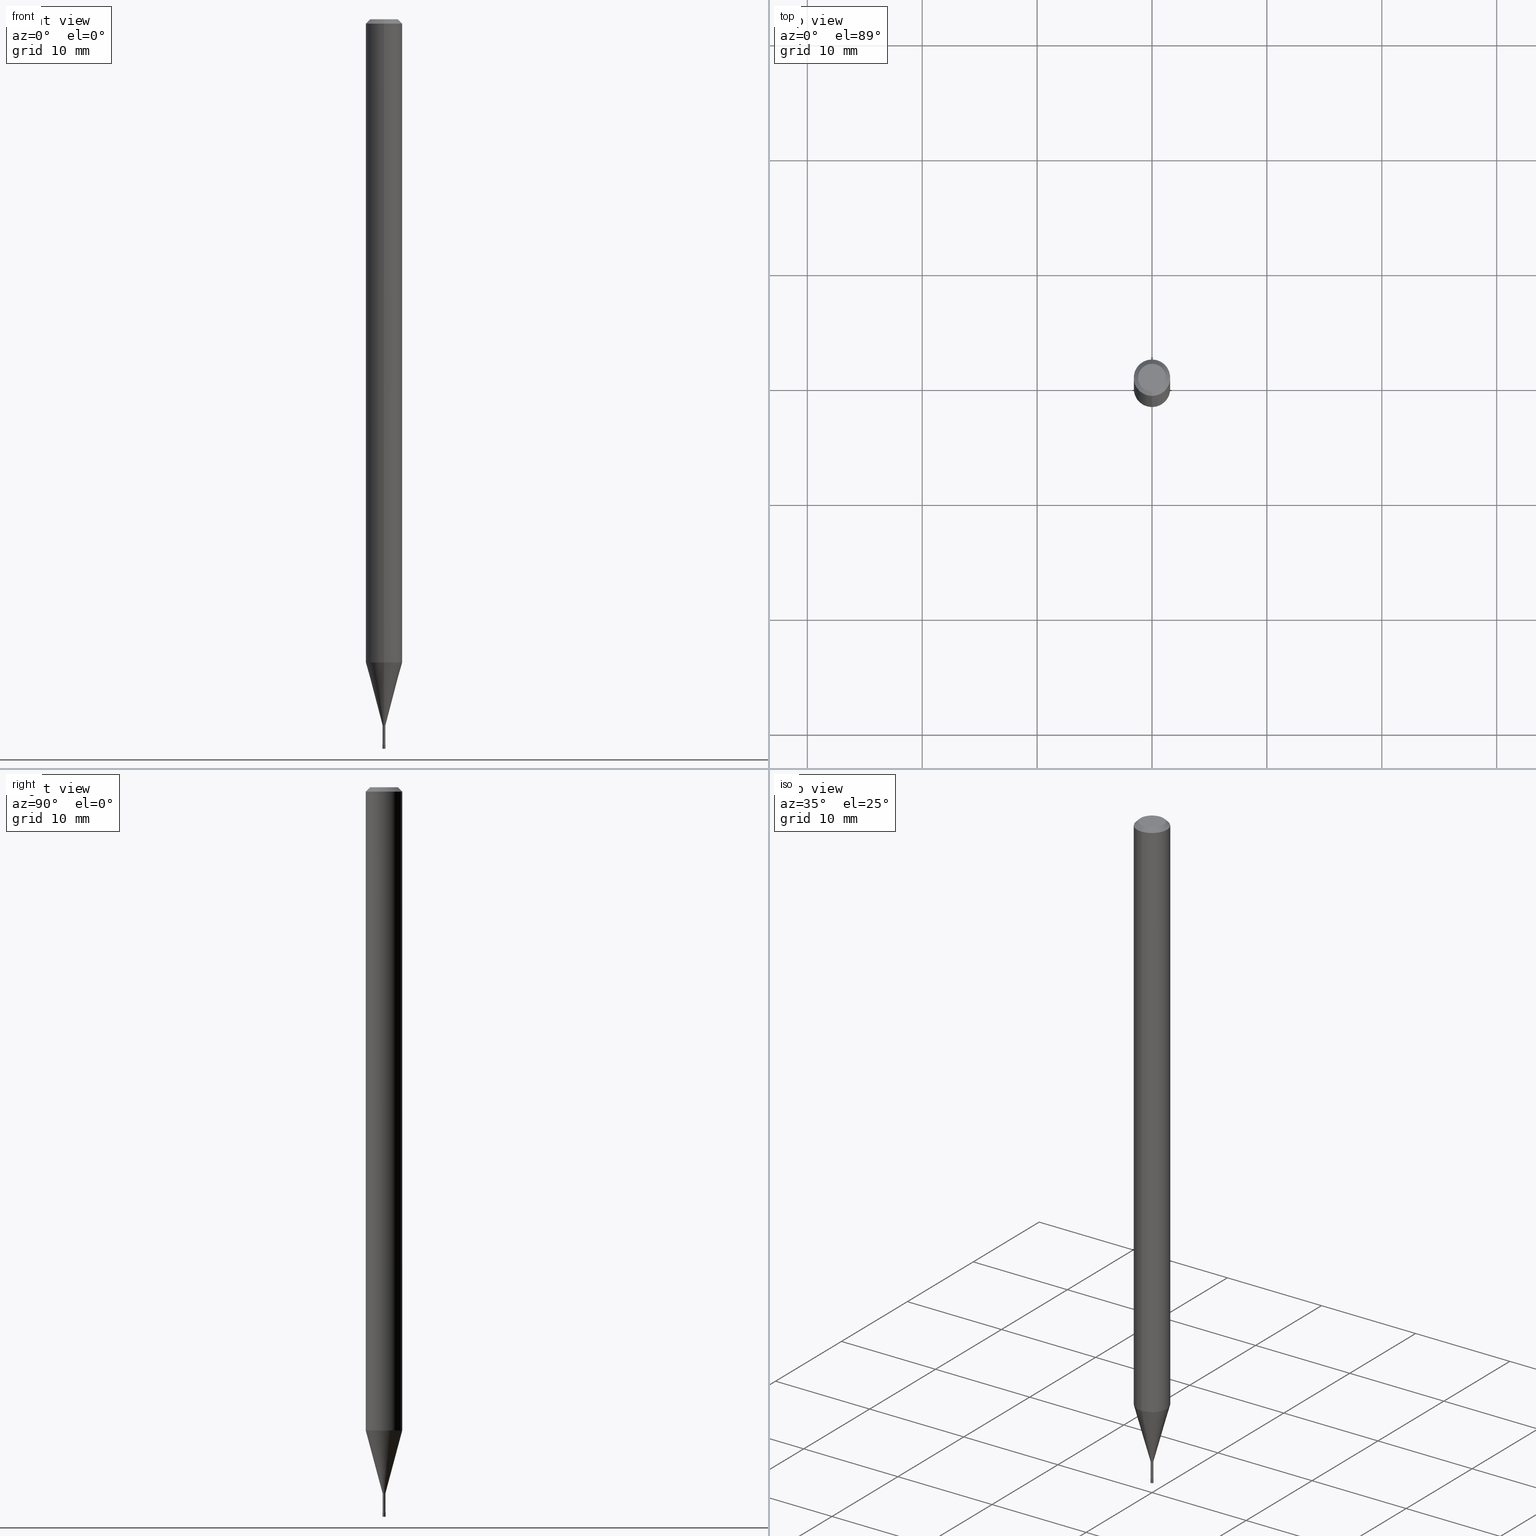
[diagram: canonical four-view strip — front | top / right | iso, engineering-drawing reading convention]
A machine part, canonical four-view strip (front | top / right | iso — engineering-drawing reading convention). The complete STEP part file that produces these views, byte-faithful:
ISO-10303-21;
HEADER;
FILE_DESCRIPTION (( 'STEP AP203' ),
    '1' );
FILE_NAME ('09601.STEP',
    '2024-03-08T23:51:11',
    ( '' ),
    ( '' ),
    'SwSTEP 2.0',
    'SolidWorks 2023',
    '' );
FILE_SCHEMA (( 'CONFIG_CONTROL_DESIGN' ));
ENDSEC;

DATA;
#1 = ORIENTED_EDGE ( 'NONE', *, *, #72, .F. ) ;
#2 = CARTESIAN_POINT ( 'NONE',  ( -3.281992458506486833E-17, -0.004700000000008682476, -2.482015037688680259 ) ) ;
#3 = ORIENTED_EDGE ( 'NONE', *, *, #180, .F. ) ;
#4 = DATE_AND_TIME ( #359, #510 ) ;
#5 = ORIENTED_EDGE ( 'NONE', *, *, #226, .T. ) ;
#6 = EDGE_CURVE ( 'NONE', #339, #478, #248, .T. ) ;
#7 = EDGE_CURVE ( 'NONE', #84, #10, #74, .T. ) ;
#8 = PERSON_AND_ORGANIZATION_ROLE ( 'classification_officer' ) ;
#9 = CARTESIAN_POINT ( 'NONE',  ( -1.375643647503589158E-16, -0.01970000000000868973, -2.482015037688680259 ) ) ;
#10 = VERTEX_POINT ( 'NONE', #497 ) ;
#11 = CC_DESIGN_DATE_AND_TIME_ASSIGNMENT ( #365, #328, ( #316 ) ) ;
#12 = DIRECTION ( 'NONE',  ( -1.000000000000000000, 6.982962677686265922E-15, -4.883557194083112340E-29 ) ) ;
#13 = DIRECTION ( 'NONE',  ( -6.982962677686265922E-15, -1.000000000000000000, 0.000000000000000000 ) ) ;
#14 = AXIS2_PLACEMENT_3D ( 'NONE', #168, #450, #370 ) ;
#15 = CARTESIAN_POINT ( 'NONE',  ( 0.000000000000000000, 0.000000000000000000, 0.000000000000000000 ) ) ;
#16 = CARTESIAN_POINT ( 'NONE',  ( 5.388009754391018819E-29, -7.699817961402049709E-15, -2.204287463322519347 ) ) ;
#17 = DATE_AND_TIME ( #369, #243 ) ;
#18 = FACE_OUTER_BOUND ( 'NONE', #319, .T. ) ;
#19 = DIRECTION ( 'NONE',  ( 7.105427357601000281E-15, 1.000000000000000000, 0.000000000000000000 ) ) ;
#20 = AXIS2_PLACEMENT_3D ( 'NONE', #108, #64, #374 ) ;
#21 = LOCAL_TIME ( 18, 51, 11.00000000000000000, #200 ) ;
#22 = ORIENTED_EDGE ( 'NONE', *, *, #277, .T. ) ;
#23 = ADVANCED_FACE ( 'NONE', ( #135 ), #27, .F. ) ;
#24 = CYLINDRICAL_SURFACE ( 'NONE', #262, 0.004999999999999997502 ) ;
#25 = FACE_OUTER_BOUND ( 'NONE', #233, .T. ) ;
#26 = DIRECTION ( 'NONE',  ( -6.982962677686266711E-15, -1.000000000000000000, 0.000000000000000000 ) ) ;
#27 = PLANE ( 'NONE',  #150 ) ;
#28 = VECTOR ( 'NONE', #67, 39.37007874015748143 ) ;
#29 = CARTESIAN_POINT ( 'NONE',  ( 6.074164310438962886E-29, -8.680377651489870003E-15, -2.484999999999999876 ) ) ;
#30 = CIRCLE ( 'NONE', #271, 0.06250000000000000000 ) ;
#31 = CIRCLE ( 'NONE', #394, 0.004999999999999997502 ) ;
#32 = COORDINATED_UNIVERSAL_TIME_OFFSET ( 5, 0, .BEHIND. ) ;
#33 = ORIENTED_EDGE ( 'NONE', *, *, #519, .T. ) ;
#34 = CARTESIAN_POINT ( 'NONE',  ( 3.666497571693545913E-31, -5.239664578364117759E-17, -0.01500000000000003067 ) ) ;
#35 = EDGE_LOOP ( 'NONE', ( #78, #442, #182, #82 ) ) ;
#36 = CIRCLE ( 'NONE', #334, 0.004999999999999997502 ) ;
#37 = EDGE_CURVE ( 'NONE', #258, #242, #480, .T. ) ;
#38 = CARTESIAN_POINT ( 'NONE',  ( -4.287811248607203282E-16, -0.06250000000000005551, -0.01499999999999981209 ) ) ;
#39 = ORIENTED_EDGE ( 'NONE', *, *, #79, .T. ) ;
#40 = EDGE_LOOP ( 'NONE', ( #485, #281, #310, #466 ) ) ;
#41 = SHAPE_DEFINITION_REPRESENTATION ( #279, #489 ) ;
#42 = ADVANCED_FACE ( 'NONE', ( #414 ), #507, .F. ) ;
#43 = DIRECTION ( 'NONE',  ( -2.444331714462359119E-29, 3.493109718909404263E-15, 1.000000000000000000 ) ) ;
#44 = ORIENTED_EDGE ( 'NONE', *, *, #519, .F. ) ;
#45 = CLOSED_SHELL ( 'NONE', ( #245, #101, #218, #416 ) ) ;
#46 = CIRCLE ( 'NONE', #296, 0.06250000000000000000 ) ;
#47 = TOROIDAL_SURFACE ( 'NONE', #415, 0.01970000000000001958, 0.01500000000000000638 ) ;
#48 = CARTESIAN_POINT ( 'NONE',  ( -4.364351673553377310E-16, -0.06250000000000770217, -2.204287463322519347 ) ) ;
#49 = ORIENTED_EDGE ( 'NONE', *, *, #267, .F. ) ;
#50 = DIRECTION ( 'NONE',  ( -2.444331714462359119E-29, 3.493109718909404657E-15, 1.000000000000000000 ) ) ;
#51 = CARTESIAN_POINT ( 'NONE',  ( 3.339550858078542769E-17, 0.004699999999991543408, -2.421974787463811118 ) ) ;
#52 = DIRECTION ( 'NONE',  ( -2.444331714462359119E-29, 3.493109718909404657E-15, 1.000000000000000000 ) ) ;
#53 = VERTEX_POINT ( 'NONE', #212 ) ;
#54 = EDGE_CURVE ( 'NONE', #478, #387, #471, .T. ) ;
#55 = AXIS2_PLACEMENT_3D ( 'NONE', #408, #169, #176 ) ;
#56 = CIRCLE ( 'NONE', #481, 0.004700000000000012328 ) ;
#57 = PERSON_AND_ORGANIZATION ( #155, #215 ) ;
#58 = PRODUCT_DEFINITION_FORMATION_WITH_SPECIFIED_SOURCE ( 'ANY', '', #440, .NOT_KNOWN. ) ;
#59 = ORIENTED_EDGE ( 'NONE', *, *, #502, .F. ) ;
#60 = DIRECTION ( 'NONE',  ( -2.444331714462359119E-29, 3.493109718909404263E-15, 1.000000000000000000 ) ) ;
#61 = CARTESIAN_POINT ( 'NONE',  ( 5.388009754391018819E-29, -7.699817961402049709E-15, -2.204287463322519347 ) ) ;
#62 = DIRECTION ( 'NONE',  ( 1.000000000000000000, -6.982962677686336130E-15, 0.000000000000000000 ) ) ;
#63 = ADVANCED_FACE ( 'NONE', ( #171 ), #85, .T. ) ;
#64 = DIRECTION ( 'NONE',  ( -2.444331714462359119E-29, 3.493109718909404657E-15, 1.000000000000000000 ) ) ;
#65 = AXIS2_PLACEMENT_3D ( 'NONE', #29, #379, #26 ) ;
#66 = DIRECTION ( 'NONE',  ( -2.444331714462359119E-29, 3.493109718909404263E-15, 1.000000000000000000 ) ) ;
#67 = DIRECTION ( 'NONE',  ( 4.937700262164548042E-15, 0.7071067811865451302, -0.7071067811865499042 ) ) ;
#68 = ADVANCED_FACE ( 'NONE', ( #94 ), #494, .F. ) ;
#69 = CLOSED_SHELL ( 'NONE', ( #42, #234, #291, #239, #430, #486, #477, #381, #63, #23, #68, #512, #110, #468 ) ) ;
#70 = FACE_OUTER_BOUND ( 'NONE', #227, .T. ) ;
#71 = DIRECTION ( 'NONE',  ( 1.000000000000000000, -6.982962677686266711E-15, 4.876176775795936914E-29 ) ) ;
#72 = EDGE_CURVE ( 'NONE', #10, #345, #246, .T. ) ;
#73 = ORIENTED_EDGE ( 'NONE', *, *, #7, .T. ) ;
#74 = CIRCLE ( 'NONE', #434, 0.04749999999999999362 ) ;
#75 = VERTEX_POINT ( 'NONE', #202 ) ;
#76 = AXIS2_PLACEMENT_3D ( 'NONE', #192, #230, #436 ) ;
#77 = CC_DESIGN_PERSON_AND_ORGANIZATION_ASSIGNMENT ( #57, #406, ( #58 ) ) ;
#78 = ORIENTED_EDGE ( 'NONE', *, *, #277, .F. ) ;
#79 = EDGE_CURVE ( 'NONE', #339, #97, #444, .T. ) ;
#80 = CYLINDRICAL_SURFACE ( 'NONE', #413, 0.004700000000000007991 ) ;
#81 =( NAMED_UNIT ( * ) PLANE_ANGLE_UNIT ( ) SI_UNIT ( $, .RADIAN. ) );
#82 = ORIENTED_EDGE ( 'NONE', *, *, #100, .F. ) ;
#83 = DIRECTION ( 'NONE',  ( -2.444331714462359119E-29, 3.493109718909404657E-15, 1.000000000000000000 ) ) ;
#84 = VERTEX_POINT ( 'NONE', #124 ) ;
#85 = CONICAL_SURFACE ( 'NONE', #313, 0.06250000000000000000, 0.7853981633974483900 ) ;
#86 = AXIS2_PLACEMENT_3D ( 'NONE', #159, #473, #482 ) ;
#87 = DIRECTION ( 'NONE',  ( -2.444331714462359119E-29, 3.493109718909404657E-15, 1.000000000000000000 ) ) ;
#88 = CARTESIAN_POINT ( 'NONE',  ( 3.702718207188339616E-17, 0.005211112605655535655, -2.418092501787273196 ) ) ;
#89 = APPROVAL_DATE_TIME ( #399, #211 ) ;
#90 = CARTESIAN_POINT ( 'NONE',  ( 5.910620190622261292E-29, -8.446662419215079685E-15, -2.418092501787273196 ) ) ;
#91 = DIRECTION ( 'NONE',  ( -2.444331714462359119E-29, 3.493109718909404263E-15, 1.000000000000000000 ) ) ;
#92 = DIRECTION ( 'NONE',  ( 1.000000000000000000, -7.105427357601001070E-15, 4.926335450446441508E-29 ) ) ;
#93 = DIRECTION ( 'NONE',  ( -2.444331714462359119E-29, 3.493109718909404657E-15, 1.000000000000000000 ) ) ;
#94 = FACE_OUTER_BOUND ( 'NONE', #351, .T. ) ;
#95 = AXIS2_PLACEMENT_3D ( 'NONE', #142, #341, #298 ) ;
#96 = AXIS2_PLACEMENT_3D ( 'NONE', #475, #327, #131 ) ;
#97 = VERTEX_POINT ( 'NONE', #371 ) ;
#98 = DIRECTION ( 'NONE',  ( 2.438088387897960049E-29, -3.491481338843145188E-15, -1.000000000000000000 ) ) ;
#99 = CARTESIAN_POINT ( 'NONE',  ( 6.076989983370064174E-29, -8.676331127025216680E-15, -2.484999999999999876 ) ) ;
#100 = EDGE_CURVE ( 'NONE', #166, #75, #125, .T. ) ;
#101 = ADVANCED_FACE ( 'NONE', ( #25 ), #338, .T. ) ;
#102 = CIRCLE ( 'NONE', #126, 0.004700000000000003654 ) ;
#103 = FACE_OUTER_BOUND ( 'NONE', #354, .T. ) ;
#104 = CARTESIAN_POINT ( 'NONE',  ( 5.910620190622261292E-29, -8.446662419215079685E-15, -2.418092501787273196 ) ) ;
#105 = DIRECTION ( 'NONE',  ( -2.444331714462359119E-29, 3.493109718909404657E-15, 1.000000000000000000 ) ) ;
#106 = PERSON_AND_ORGANIZATION_ROLE ( 'creator' ) ;
#107 = AXIS2_PLACEMENT_3D ( 'NONE', #441, #87, #330 ) ;
#108 = CARTESIAN_POINT ( 'NONE',  ( 6.066709664809331474E-29, -8.670177699308193072E-15, -2.482015037688680259 ) ) ;
#109 = CC_DESIGN_APPROVAL ( #211, ( #316 ) ) ;
#110 = ADVANCED_FACE ( 'NONE', ( #463 ), #256, .T. ) ;
#111 = DIRECTION ( 'NONE',  ( -4.851104656540964275E-15, -0.7071067811865500152, -0.7071067811865450192 ) ) ;
#112 = MECHANICAL_CONTEXT ( 'NONE', #275, 'mechanical' ) ;
#113 = EDGE_CURVE ( 'NONE', #242, #229, #401, .T. ) ;
#114 = VERTEX_POINT ( 'NONE', #51 ) ;
#115 = ORIENTED_EDGE ( 'NONE', *, *, #37, .F. ) ;
#116 = DIRECTION ( 'NONE',  ( 1.000000000000000000, 0.000000000000000000, 0.000000000000000000 ) ) ;
#117 = ORIENTED_EDGE ( 'NONE', *, *, #267, .T. ) ;
#118 = CALENDAR_DATE ( 2024, 8, 3 ) ;
#119 = CARTESIAN_POINT ( 'NONE',  ( 0.000000000000000000, 0.000000000000000000, 0.000000000000000000 ) ) ;
#120 = APPROVAL_ROLE ( '' ) ;
#121 = ORIENTED_EDGE ( 'NONE', *, *, #346, .F. ) ;
#122 = VERTEX_POINT ( 'NONE', #364 ) ;
#123 = DIRECTION ( 'NONE',  ( -1.000000000000000000, 6.982962677686265922E-15, -4.876176775795935793E-29 ) ) ;
#124 = CARTESIAN_POINT ( 'NONE',  ( -3.773273898774340269E-16, -0.04749999999999999362, 1.370861487734750493E-16 ) ) ;
#125 = CIRCLE ( 'NONE', #183, 0.004999999999999997502 ) ;
#126 = AXIS2_PLACEMENT_3D ( 'NONE', #465, #105, #221 ) ;
#127 = EDGE_CURVE ( 'NONE', #97, #387, #326, .T. ) ;
#128 = CARTESIAN_POINT ( 'NONE',  ( 5.919883105768865259E-29, -8.460548286068590295E-15, -2.421974787463811118 ) ) ;
#129 = DIRECTION ( 'NONE',  ( -2.444331714462359119E-29, 3.493109718909404657E-15, 1.000000000000000000 ) ) ;
#130 = DIRECTION ( 'NONE',  ( -2.444331714462359119E-29, 3.493109718909404657E-15, 1.000000000000000000 ) ) ;
#131 = DIRECTION ( 'NONE',  ( -6.982962677686265922E-15, -1.000000000000000000, 0.000000000000000000 ) ) ;
#132 = DATE_TIME_ROLE ( 'creation_date' ) ;
#133 = UNCERTAINTY_MEASURE_WITH_UNIT (LENGTH_MEASURE( 1.000000000000000082E-05 ), #299, 'distance_accuracy_value', 'NONE');
#134 = CARTESIAN_POINT ( 'NONE',  ( 5.920109784626025516E-29, -8.460223669043378527E-15, -2.421974787463811118 ) ) ;
#135 = FACE_OUTER_BOUND ( 'NONE', #261, .T. ) ;
#136 = EDGE_CURVE ( 'NONE', #97, #339, #429, .T. ) ;
#137 = AXIS2_PLACEMENT_3D ( 'NONE', #285, #448, #244 ) ;
#138 = CC_DESIGN_APPROVAL ( #140, ( #438 ) ) ;
#139 = PERSON_AND_ORGANIZATION ( #155, #215 ) ;
#140 = APPROVAL ( #483, 'UNSPECIFIED' ) ;
#141 = VECTOR ( 'NONE', #411, 39.37007874015748854 ) ;
#142 = CARTESIAN_POINT ( 'NONE',  ( 6.076989983370064174E-29, -8.676331127025216680E-15, -2.484999999999999876 ) ) ;
#143 = TOROIDAL_SURFACE ( 'NONE', #20, 0.01970000000000001958, 0.01500000000000000638 ) ;
#144 = EDGE_CURVE ( 'NONE', #97, #433, #196, .T. ) ;
#145 = EDGE_LOOP ( 'NONE', ( #426, #474, #509, #357 ) ) ;
#146 = ORIENTED_EDGE ( 'NONE', *, *, #6, .F. ) ;
#147 = DIRECTION ( 'NONE',  ( 1.000000000000000000, -6.982962677686336130E-15, 0.000000000000000000 ) ) ;
#148 = EDGE_CURVE ( 'NONE', #258, #163, #347, .T. ) ;
#149 = DIRECTION ( 'NONE',  ( -1.807323732225328167E-15, -0.2588190451025179084, 0.9659258262890690894 ) ) ;
#150 = AXIS2_PLACEMENT_3D ( 'NONE', #204, #496, #288 ) ;
#151 = DIRECTION ( 'NONE',  ( -2.444331714462359119E-29, 3.493109718909404657E-15, 1.000000000000000000 ) ) ;
#152 = AXIS2_PLACEMENT_3D ( 'NONE', #119, #189, #71 ) ;
#153 = ORIENTED_EDGE ( 'NONE', *, *, #113, .F. ) ;
#154 = DIRECTION ( 'NONE',  ( -2.444331714462359119E-29, 3.493109718909404657E-15, 1.000000000000000000 ) ) ;
#155 = PERSON ( 'UNSPECIFIED', 'UNSPECIFIED', 'UNSPECIFIED', ('UNSPECIFIED'), ('UNSPECIFIED'), ('UNSPECIFIED') ) ;
#156 = ORIENTED_EDGE ( 'NONE', *, *, #37, .T. ) ;
#157 = APPLICATION_PROTOCOL_DEFINITION ( 'international standard', 'config_control_design', 1994, #275 ) ;
#158 = ORIENTED_EDGE ( 'NONE', *, *, #113, .T. ) ;
#159 = CARTESIAN_POINT ( 'NONE',  ( 6.113672015462842613E-29, -8.728703347107864943E-15, -2.500000000000000000 ) ) ;
#160 = VERTEX_POINT ( 'NONE', #395 ) ;
#161 = CIRCLE ( 'NONE', #472, 0.01500000000000000638 ) ;
#162 = APPROVAL_DATE_TIME ( #4, #140 ) ;
#163 = VERTEX_POINT ( 'NONE', #2 ) ;
#164 = PERSON_AND_ORGANIZATION ( #155, #215 ) ;
#165 = CARTESIAN_POINT ( 'NONE',  ( 1.399769189447989417E-16, 0.01969999999999154719, -2.421974787463811118 ) ) ;
#166 = VERTEX_POINT ( 'NONE', #311 ) ;
#167 = DIMENSIONAL_EXPONENTS ( 1.000000000000000000, 0.000000000000000000, 0.000000000000000000, 0.000000000000000000, 0.000000000000000000, 0.000000000000000000, 0.000000000000000000 ) ;
#168 = CARTESIAN_POINT ( 'NONE',  ( 0.000000000000000000, 0.000000000000000000, 0.000000000000000000 ) ) ;
#169 = DIRECTION ( 'NONE',  ( -2.444331714462359119E-29, 3.493109718909404657E-15, 1.000000000000000000 ) ) ;
#170 = CARTESIAN_POINT ( 'NONE',  ( 7.048612517077012088E-46, -1.007292780376324929E-31, -2.883656287472169979E-17 ) ) ;
#171 = FACE_OUTER_BOUND ( 'NONE', #405, .T. ) ;
#172 = CIRCLE ( 'NONE', #86, 0.004999999999999997502 ) ;
#173 = CARTESIAN_POINT ( 'NONE',  ( 0.000000000000000000, 0.000000000000000000, 0.000000000000000000 ) ) ;
#174 = ORIENTED_EDGE ( 'NONE', *, *, #307, .T. ) ;
#175 = EDGE_CURVE ( 'NONE', #122, #160, #172, .T. ) ;
#176 = DIRECTION ( 'NONE',  ( -6.982962677686265133E-15, -1.000000000000000000, 3.493109718909404657E-15 ) ) ;
#177 = DIRECTION ( 'NONE',  ( -6.982962677686265922E-15, -1.000000000000000000, 3.493109718909405052E-15 ) ) ;
#178 = VECTOR ( 'NONE', #344, 39.37007874015748143 ) ;
#179 = ORIENTED_EDGE ( 'NONE', *, *, #290, .F. ) ;
#180 = EDGE_CURVE ( 'NONE', #84, #53, #390, .T. ) ;
#181 = CARTESIAN_POINT ( 'NONE',  ( 0.004999999999999997502, -3.491481338843131630E-17, 2.438088387897967108E-31 ) ) ;
#182 = ORIENTED_EDGE ( 'NONE', *, *, #309, .T. ) ;
#183 = AXIS2_PLACEMENT_3D ( 'NONE', #99, #252, #62 ) ;
#184 = DATE_AND_TIME ( #263, #255 ) ;
#185 = DIRECTION ( 'NONE',  ( -6.982962677686265922E-15, -1.000000000000000000, 3.483106191921935554E-15 ) ) ;
#186 = LOCAL_TIME ( 18, 51, 11.00000000000000000, #273 ) ;
#187 = ORIENTED_EDGE ( 'NONE', *, *, #226, .F. ) ;
#188 = PERSON_AND_ORGANIZATION_ROLE ( 'design_supplier' ) ;
#189 = DIRECTION ( 'NONE',  ( -2.445468806185136597E-29, 3.491481338843145583E-15, 1.000000000000000000 ) ) ;
#190 = CARTESIAN_POINT ( 'NONE',  ( -4.364351673553916201E-16, -0.06250000000000000000, 2.183193574318377911E-16 ) ) ;
#191 = ORIENTED_EDGE ( 'NONE', *, *, #6, .T. ) ;
#192 = CARTESIAN_POINT ( 'NONE',  ( -1.375643647503602717E-16, -0.01970000000000846768, -2.421974787463811118 ) ) ;
#193 = APPLICATION_PROTOCOL_DEFINITION ( 'international standard', 'config_control_design', 1994, #324 ) ;
#194 = EDGE_LOOP ( 'NONE', ( #467, #389, #187, #360 ) ) ;
#195 = DIRECTION ( 'NONE',  ( -2.444331714462359119E-29, 3.493109718909404657E-15, 1.000000000000000000 ) ) ;
#196 = CIRCLE ( 'NONE', #76, 0.01500000000000002720 ) ;
#197 = ORIENTED_EDGE ( 'NONE', *, *, #346, .T. ) ;
#198 = DIRECTION ( 'NONE',  ( 1.000000000000000000, -6.982962677686336130E-15, 0.000000000000000000 ) ) ;
#199 = ORIENTED_EDGE ( 'NONE', *, *, #72, .T. ) ;
#200 = COORDINATED_UNIVERSAL_TIME_OFFSET ( 5, 0, .BEHIND. ) ;
#201 = CARTESIAN_POINT ( 'NONE',  ( 2.405581959610001048E-16, 0.005211112605655535655, -2.418092501787273196 ) ) ;
#202 = CARTESIAN_POINT ( 'NONE',  ( 0.004999999999999997502, -8.711245940413648329E-15, -2.484999999999999876 ) ) ;
#203 = DIRECTION ( 'NONE',  ( 7.105427357601000281E-15, 1.000000000000000000, 0.000000000000000000 ) ) ;
#204 = CARTESIAN_POINT ( 'NONE',  ( 3.316907271900976096E-16, 0.04749999999999999362, -1.803409930855575528E-16 ) ) ;
#205 = AXIS2_PLACEMENT_3D ( 'NONE', #418, #92, #19 ) ;
#206 = VECTOR ( 'NONE', #500, 39.37007874015748143 ) ;
#207 = CYLINDRICAL_SURFACE ( 'NONE', #14, 0.06250000000000000000 ) ;
#208 = CARTESIAN_POINT ( 'NONE',  ( 4.364351673553919652E-16, 0.06249999999999995143, -0.01500000000000024751 ) ) ;
#209 = ORIENTED_EDGE ( 'NONE', *, *, #180, .T. ) ;
#210 = DIRECTION ( 'NONE',  ( -2.444331714462359119E-29, 3.493109718909404657E-15, 1.000000000000000000 ) ) ;
#211 = APPROVAL ( #443, 'UNSPECIFIED' ) ;
#212 = CARTESIAN_POINT ( 'NONE',  ( -4.364351673553912750E-16, -0.06250000000000005551, -0.01499999999999981209 ) ) ;
#213 = CARTESIAN_POINT ( 'NONE',  ( 3.446132268442561466E-17, 0.004699999999991343047, -2.482015037688680259 ) ) ;
#214 = AXIS2_PLACEMENT_3D ( 'NONE', #34, #350, #185 ) ;
#215 = ORGANIZATION ( 'UNSPECIFIED', 'UNSPECIFIED', '' ) ;
#216 =( LENGTH_UNIT ( ) NAMED_UNIT ( * ) SI_UNIT ( $, .METRE. ) );
#217 = DIRECTION ( 'NONE',  ( 6.982962677686265922E-15, 1.000000000000000000, -3.483106191921935554E-15 ) ) ;
#218 = ADVANCED_FACE ( 'NONE', ( #264 ), #431, .T. ) ;
#219 = CC_DESIGN_PERSON_AND_ORGANIZATION_ASSIGNMENT ( #361, #8, ( #316 ) ) ;
#220 = DIRECTION ( 'NONE',  ( -2.445468806185136597E-29, 3.491481338843145583E-15, 1.000000000000000000 ) ) ;
#221 = DIRECTION ( 'NONE',  ( -6.982962677686265922E-15, -1.000000000000000000, 0.000000000000000000 ) ) ;
#222 = ORIENTED_EDGE ( 'NONE', *, *, #318, .T. ) ;
#223 = CARTESIAN_POINT ( 'NONE',  ( 0.000000000000000000, 0.000000000000000000, 0.000000000000000000 ) ) ;
#224 = CARTESIAN_POINT ( 'NONE',  ( 6.066709664809331474E-29, -8.670177699308193072E-15, -2.482015037688680259 ) ) ;
#225 = VECTOR ( 'NONE', #43, 39.37007874015748143 ) ;
#226 = EDGE_CURVE ( 'NONE', #53, #345, #385, .T. ) ;
#227 = EDGE_LOOP ( 'NONE', ( #476, #156, #158, #396 ) ) ;
#228 = DIRECTION ( 'NONE',  ( -6.982962677686265922E-15, -1.000000000000000000, 0.000000000000000000 ) ) ;
#229 = VERTEX_POINT ( 'NONE', #517 ) ;
#230 = DIRECTION ( 'NONE',  ( -1.000000000000000000, 6.982962677686265922E-15, -4.883557194083112340E-29 ) ) ;
#231 = DIRECTION ( 'NONE',  ( 0.000000000000000000, 0.000000000000000000, 1.000000000000000000 ) ) ;
#232 = VECTOR ( 'NONE', #66, 39.37007874015748143 ) ;
#233 = EDGE_LOOP ( 'NONE', ( #33, #437 ) ) ;
#234 = ADVANCED_FACE ( 'NONE', ( #352 ), #80, .T. ) ;
#235 = PERSON_AND_ORGANIZATION ( #155, #215 ) ;
#236 = ORIENTED_EDGE ( 'NONE', *, *, #127, .F. ) ;
#237 = COORDINATED_UNIVERSAL_TIME_OFFSET ( 5, 0, .BEHIND. ) ;
#238 = ORIENTED_EDGE ( 'NONE', *, *, #461, .T. ) ;
#239 = ADVANCED_FACE ( 'NONE', ( #18 ), #284, .T. ) ;
#240 = CARTESIAN_POINT ( 'NONE',  ( 4.440892098501169490E-16, 0.06249999999999995837, -0.01500000000000024751 ) ) ;
#241 = VECTOR ( 'NONE', #91, 39.37007874015748143 ) ;
#242 = VERTEX_POINT ( 'NONE', #377 ) ;
#243 = LOCAL_TIME ( 18, 51, 11.00000000000000000, #501 ) ;
#244 = DIRECTION ( 'NONE',  ( -6.982962677686266711E-15, -1.000000000000000000, 0.000000000000000000 ) ) ;
#245 = ADVANCED_FACE ( 'NONE', ( #103 ), #24, .T. ) ;
#246 = LINE ( 'NONE', #208, #28 ) ;
#247 = CARTESIAN_POINT ( 'NONE',  ( 7.048612517077012088E-46, -1.007292780376324929E-31, -2.883656287472169979E-17 ) ) ;
#248 = LINE ( 'NONE', #88, #141 ) ;
#249 = AXIS2_PLACEMENT_3D ( 'NONE', #425, #60, #506 ) ;
#250 = AXIS2_PLACEMENT_3D ( 'NONE', #128, #499, #280 ) ;
#251 = FACE_OUTER_BOUND ( 'NONE', #194, .T. ) ;
#252 = DIRECTION ( 'NONE',  ( -2.445468806185136597E-29, 3.491481338843145583E-15, 1.000000000000000000 ) ) ;
#253 = EDGE_CURVE ( 'NONE', #258, #114, #300, .T. ) ;
#254 = CIRCLE ( 'NONE', #393, 0.01500000000000002720 ) ;
#255 = LOCAL_TIME ( 18, 51, 11.00000000000000000, #32 ) ;
#256 = CYLINDRICAL_SURFACE ( 'NONE', #358, 0.004700000000000007991 ) ;
#257 = LINE ( 'NONE', #427, #206 ) ;
#258 = VERTEX_POINT ( 'NONE', #213 ) ;
#259 = SECURITY_CLASSIFICATION_LEVEL ( 'unclassified' ) ;
#260 = LINE ( 'NONE', #336, #445 ) ;
#261 = EDGE_LOOP ( 'NONE', ( #238, #73 ) ) ;
#262 = AXIS2_PLACEMENT_3D ( 'NONE', #173, #337, #423 ) ;
#263 = CALENDAR_DATE ( 2024, 8, 3 ) ;
#264 = FACE_OUTER_BOUND ( 'NONE', #35, .T. ) ;
#265 = ORIENTED_EDGE ( 'NONE', *, *, #502, .T. ) ;
#266 = CARTESIAN_POINT ( 'NONE',  ( 0.000000000000000000, 0.000000000000000000, 0.000000000000000000 ) ) ;
#267 = EDGE_CURVE ( 'NONE', #163, #433, #260, .T. ) ;
#268 = ORIENTED_EDGE ( 'NONE', *, *, #446, .F. ) ;
#269 = APPROVAL ( #386, 'UNSPECIFIED' ) ;
#270 = CIRCLE ( 'NONE', #367, 0.004700000000000003654 ) ;
#271 = AXIS2_PLACEMENT_3D ( 'NONE', #516, #154, #306 ) ;
#272 = ORIENTED_EDGE ( 'NONE', *, *, #54, .T. ) ;
#273 = COORDINATED_UNIVERSAL_TIME_OFFSET ( 5, 0, .BEHIND. ) ;
#274 = PERSON_AND_ORGANIZATION ( #155, #215 ) ;
#275 = APPLICATION_CONTEXT ( 'configuration controlled 3d designs of mechanical parts and assemblies' ) ;
#276 = ORIENTED_EDGE ( 'NONE', *, *, #54, .F. ) ;
#277 = EDGE_CURVE ( 'NONE', #122, #166, #257, .T. ) ;
#278 = EDGE_CURVE ( 'NONE', #433, #114, #102, .T. ) ;
#279 = PRODUCT_DEFINITION_SHAPE ( 'NONE', 'NONE',  #438 ) ;
#280 = DIRECTION ( 'NONE',  ( -6.982962677686265133E-15, -1.000000000000000000, 3.493109718909404657E-15 ) ) ;
#281 = ORIENTED_EDGE ( 'NONE', *, *, #372, .T. ) ;
#282 = APPROVAL_DATE_TIME ( #184, #269 ) ;
#283 = CYLINDRICAL_SURFACE ( 'NONE', #435, 0.06250000000000000000 ) ;
#284 = CONICAL_SURFACE ( 'NONE', #421, 0.06250000000000000000, 0.7853981633974483900 ) ;
#285 = CARTESIAN_POINT ( 'NONE',  ( 6.074164310438962886E-29, -8.680377651489870003E-15, -2.484999999999999876 ) ) ;
#286 = MANIFOLD_SOLID_BREP ( 'Body-Move/Copy2[1]', #45 ) ;
#287 = DIRECTION ( 'NONE',  ( 1.000000000000000000, -7.105427357601001070E-15, 4.926335450446441508E-29 ) ) ;
#288 = DIRECTION ( 'NONE',  ( 6.982962677686265922E-15, 1.000000000000000000, -3.493109718909404263E-15 ) ) ;
#289 = ORIENTED_EDGE ( 'NONE', *, *, #335, .F. ) ;
#290 = EDGE_CURVE ( 'NONE', #229, #242, #384, .T. ) ;
#291 = ADVANCED_FACE ( 'NONE', ( #70 ), #143, .F. ) ;
#292 = FACE_OUTER_BOUND ( 'NONE', #515, .T. ) ;
#293 = DIRECTION ( 'NONE',  ( -6.982962677686265922E-15, -1.000000000000000000, 4.370956789862821150E-15 ) ) ;
#294 = AXIS2_PLACEMENT_3D ( 'NONE', #90, #505, #348 ) ;
#295 =( GEOMETRIC_REPRESENTATION_CONTEXT ( 3 ) GLOBAL_UNCERTAINTY_ASSIGNED_CONTEXT ( ( #133 ) ) GLOBAL_UNIT_ASSIGNED_CONTEXT ( ( #299, #81, #353 ) ) REPRESENTATION_CONTEXT ( 'NONE', 'WORKASPACE' ) );
#296 = AXIS2_PLACEMENT_3D ( 'NONE', #61, #93, #417 ) ;
#297 = AXIS2_PLACEMENT_3D ( 'NONE', #266, #231, #116 ) ;
#298 = DIRECTION ( 'NONE',  ( 1.000000000000000000, -6.982962677686265922E-15, 4.876176775795935793E-29 ) ) ;
#299 =( CONVERSION_BASED_UNIT ( 'INCH', #378 ) LENGTH_UNIT ( ) NAMED_UNIT ( #167 ) );
#300 = LINE ( 'NONE', #503, #232 ) ;
#301 = DIRECTION ( 'NONE',  ( 2.444331714462359119E-29, -3.493109718909404657E-15, -1.000000000000000000 ) ) ;
#302 = EDGE_LOOP ( 'NONE', ( #197, #317, #362, #49 ) ) ;
#303 = AXIS2_PLACEMENT_3D ( 'NONE', #16, #130, #293 ) ;
#304 = VECTOR ( 'NONE', #149, 39.37007874015748143 ) ;
#305 = ORIENTED_EDGE ( 'NONE', *, *, #290, .T. ) ;
#306 = DIRECTION ( 'NONE',  ( -6.982962677686265922E-15, -1.000000000000000000, 3.483106191921935554E-15 ) ) ;
#307 = EDGE_CURVE ( 'NONE', #387, #53, #470, .T. ) ;
#308 = APPROVAL_ROLE ( '' ) ;
#309 = EDGE_CURVE ( 'NONE', #160, #75, #388, .T. ) ;
#310 = ORIENTED_EDGE ( 'NONE', *, *, #335, .T. ) ;
#311 = CARTESIAN_POINT ( 'NONE',  ( -0.004999999999999997502, -8.666990100278535771E-15, -2.484999999999999876 ) ) ;
#312 = ORIENTED_EDGE ( 'NONE', *, *, #461, .F. ) ;
#313 = AXIS2_PLACEMENT_3D ( 'NONE', #454, #373, #457 ) ;
#314 = PERSON_AND_ORGANIZATION ( #155, #215 ) ;
#315 = CONICAL_SURFACE ( 'NONE', #294, 0.005211112605663982024, 0.2617993877991499629 ) ;
#316 = SECURITY_CLASSIFICATION ( '', '', #259 ) ;
#317 = ORIENTED_EDGE ( 'NONE', *, *, #253, .T. ) ;
#318 = EDGE_CURVE ( 'NONE', #160, #122, #36, .T. ) ;
#319 = EDGE_LOOP ( 'NONE', ( #518, #209, #5, #1 ) ) ;
#320 = CC_DESIGN_PERSON_AND_ORGANIZATION_ASSIGNMENT ( #274, #188, ( #58 ) ) ;
#321 = DIRECTION ( 'NONE',  ( -2.445468806185136597E-29, 3.491481338843145583E-15, 1.000000000000000000 ) ) ;
#322 = EDGE_LOOP ( 'NONE', ( #146, #39, #428, #276 ) ) ;
#323 = CALENDAR_DATE ( 2024, 8, 3 ) ;
#324 = APPLICATION_CONTEXT ( 'configuration controlled 3d designs of mechanical parts and assemblies' ) ;
#325 = FACE_OUTER_BOUND ( 'NONE', #145, .T. ) ;
#326 = LINE ( 'NONE', #451, #304 ) ;
#327 = DIRECTION ( 'NONE',  ( -2.444331714462359119E-29, 3.493109718909404657E-15, 1.000000000000000000 ) ) ;
#328 = DATE_TIME_ROLE ( 'classification_date' ) ;
#329 = EDGE_CURVE ( 'NONE', #163, #229, #161, .T. ) ;
#330 = DIRECTION ( 'NONE',  ( -6.982962677686265922E-15, -1.000000000000000000, 0.000000000000000000 ) ) ;
#331 = CARTESIAN_POINT ( 'NONE',  ( -3.281992458506627349E-17, -0.004700000000008463900, -2.421974787463811118 ) ) ;
#332 = DIRECTION ( 'NONE',  ( -6.982962677686266711E-15, -1.000000000000000000, 3.493109718909405052E-15 ) ) ;
#333 = FACE_OUTER_BOUND ( 'NONE', #322, .T. ) ;
#334 = AXIS2_PLACEMENT_3D ( 'NONE', #495, #321, #198 ) ;
#335 = EDGE_CURVE ( 'NONE', #114, #433, #270, .T. ) ;
#336 = CARTESIAN_POINT ( 'NONE',  ( -3.281992458512550585E-17, -0.004700000000000007991, 1.641761567887423080E-17 ) ) ;
#337 = DIRECTION ( 'NONE',  ( -2.445468806185136597E-29, 3.491481338843145583E-15, 1.000000000000000000 ) ) ;
#338 = PLANE ( 'NONE',  #95 ) ;
#339 = VERTEX_POINT ( 'NONE', #201 ) ;
#340 = TOROIDAL_SURFACE ( 'NONE', #250, 0.01970000000000000570, 0.01500000000000002720 ) ;
#341 = DIRECTION ( 'NONE',  ( -2.438088387897960049E-29, 3.491481338843145188E-15, 1.000000000000000000 ) ) ;
#342 = DIRECTION ( 'NONE',  ( -2.444331714462359119E-29, 3.493109718909404263E-15, 1.000000000000000000 ) ) ;
#343 = CARTESIAN_POINT ( 'NONE',  ( 6.076989983370064174E-29, -8.676331127025216680E-15, -2.484999999999999876 ) ) ;
#344 = DIRECTION ( 'NONE',  ( -2.445468806185136877E-29, 3.491481338843145188E-15, 1.000000000000000000 ) ) ;
#345 = VERTEX_POINT ( 'NONE', #240 ) ;
#346 = EDGE_CURVE ( 'NONE', #163, #258, #56, .T. ) ;
#347 = CIRCLE ( 'NONE', #491, 0.004700000000000012328 ) ;
#348 = DIRECTION ( 'NONE',  ( -6.982962677686265922E-15, -1.000000000000000000, 0.000000000000000000 ) ) ;
#349 = APPROVAL_PERSON_ORGANIZATION ( #164, #211, #355 ) ;
#350 = DIRECTION ( 'NONE',  ( -2.444331714462359119E-29, 3.493109718909404657E-15, 1.000000000000000000 ) ) ;
#351 = EDGE_LOOP ( 'NONE', ( #179, #153 ) ) ;
#352 = FACE_OUTER_BOUND ( 'NONE', #302, .T. ) ;
#353 =( NAMED_UNIT ( * ) SI_UNIT ( $, .STERADIAN. ) SOLID_ANGLE_UNIT ( ) );
#354 = EDGE_LOOP ( 'NONE', ( #222, #22, #44, #398 ) ) ;
#355 = APPROVAL_ROLE ( '' ) ;
#356 = CARTESIAN_POINT ( 'NONE',  ( 6.066868072394927886E-29, -8.669950850629620107E-15, -2.482015037688680259 ) ) ;
#357 = ORIENTED_EDGE ( 'NONE', *, *, #278, .T. ) ;
#358 = AXIS2_PLACEMENT_3D ( 'NONE', #223, #383, #177 ) ;
#359 = CALENDAR_DATE ( 2024, 8, 3 ) ;
#360 = ORIENTED_EDGE ( 'NONE', *, *, #307, .F. ) ;
#361 = PERSON_AND_ORGANIZATION ( #155, #215 ) ;
#362 = ORIENTED_EDGE ( 'NONE', *, *, #278, .F. ) ;
#363 = CARTESIAN_POINT ( 'NONE',  ( 6.066868072394927886E-29, -8.669950850629620107E-15, -2.482015037688680259 ) ) ;
#364 = CARTESIAN_POINT ( 'NONE',  ( -0.004999999999999997502, -8.666990100278535771E-15, -2.500000000000000000 ) ) ;
#365 = DATE_AND_TIME ( #118, #21 ) ;
#366 = PLANE ( 'NONE',  #462 ) ;
#367 = AXIS2_PLACEMENT_3D ( 'NONE', #134, #50, #410 ) ;
#368 = DIRECTION ( 'NONE',  ( -2.444331714462359119E-29, 3.493109718909404657E-15, 1.000000000000000000 ) ) ;
#369 = CALENDAR_DATE ( 2024, 8, 3 ) ;
#370 = DIRECTION ( 'NONE',  ( -6.982962677686265922E-15, -1.000000000000000000, 3.493109718909404657E-15 ) ) ;
#371 = CARTESIAN_POINT ( 'NONE',  ( -3.638900483451291198E-17, -0.005211112605672428393, -2.418092501787273196 ) ) ;
#372 = EDGE_CURVE ( 'NONE', #339, #114, #254, .T. ) ;
#373 = DIRECTION ( 'NONE',  ( 2.444331714462359119E-29, -3.493109718909404657E-15, -1.000000000000000000 ) ) ;
#374 = DIRECTION ( 'NONE',  ( -6.982962677686265133E-15, -1.000000000000000000, 3.493109718909404657E-15 ) ) ;
#375 = VECTOR ( 'NONE', #111, 39.37007874015748143 ) ;
#376 = APPROVAL_PERSON_ORGANIZATION ( #139, #269, #308 ) ;
#377 = CARTESIAN_POINT ( 'NONE',  ( 3.552713678806574616E-17, 0.004999999999991322150, -2.484999999999999876 ) ) ;
#378 = LENGTH_MEASURE_WITH_UNIT ( LENGTH_MEASURE( 0.02539999999999999897 ), #216 );
#379 = DIRECTION ( 'NONE',  ( -2.444331714462359119E-29, 3.493109718909404657E-15, 1.000000000000000000 ) ) ;
#380 = EDGE_LOOP ( 'NONE', ( #464, #191, #268, #236 ) ) ;
#381 = ADVANCED_FACE ( 'NONE', ( #447 ), #207, .T. ) ;
#382 = EDGE_LOOP ( 'NONE', ( #391, #272, #174, #59 ) ) ;
#383 = DIRECTION ( 'NONE',  ( -2.444331714462359119E-29, 3.493109718909404657E-15, 1.000000000000000000 ) ) ;
#384 = CIRCLE ( 'NONE', #65, 0.005000000000000001839 ) ;
#385 = CIRCLE ( 'NONE', #214, 0.06250000000000000000 ) ;
#386 = APPROVAL_STATUS ( 'not_yet_approved' ) ;
#387 = VERTEX_POINT ( 'NONE', #48 ) ;
#388 = LINE ( 'NONE', #181, #178 ) ;
#389 = ORIENTED_EDGE ( 'NONE', *, *, #409, .T. ) ;
#390 = LINE ( 'NONE', #38, #375 ) ;
#391 = ORIENTED_EDGE ( 'NONE', *, *, #409, .F. ) ;
#392 = CC_DESIGN_DATE_AND_TIME_ASSIGNMENT ( #17, #132, ( #438 ) ) ;
#393 = AXIS2_PLACEMENT_3D ( 'NONE', #165, #287, #203 ) ;
#394 = AXIS2_PLACEMENT_3D ( 'NONE', #343, #220, #147 ) ;
#395 = CARTESIAN_POINT ( 'NONE',  ( 0.004999999999999997502, -8.763618160496296592E-15, -2.500000000000000000 ) ) ;
#396 = ORIENTED_EDGE ( 'NONE', *, *, #329, .F. ) ;
#397 = PERSON_AND_ORGANIZATION_ROLE ( 'design_owner' ) ;
#398 = ORIENTED_EDGE ( 'NONE', *, *, #309, .F. ) ;
#399 = DATE_AND_TIME ( #323, #186 ) ;
#400 = EDGE_LOOP ( 'NONE', ( #452, #439, #117, #289 ) ) ;
#401 = CIRCLE ( 'NONE', #137, 0.005000000000000001839 ) ;
#402 = CARTESIAN_POINT ( 'NONE',  ( 4.440892098501162587E-16, 0.06249999999999228395, -2.204287463322519791 ) ) ;
#403 = APPROVAL_PERSON_ORGANIZATION ( #314, #140, #120 ) ;
#404 = DIRECTION ( 'NONE',  ( -6.982962677686265922E-15, -1.000000000000000000, 3.493109718909404657E-15 ) ) ;
#405 = EDGE_LOOP ( 'NONE', ( #3, #312, #199, #265 ) ) ;
#406 = PERSON_AND_ORGANIZATION_ROLE ( 'creator' ) ;
#407 = DIRECTION ( 'NONE',  ( -6.982962677686265922E-15, -1.000000000000000000, 0.000000000000000000 ) ) ;
#408 = CARTESIAN_POINT ( 'NONE',  ( 5.919883105768865259E-29, -8.460548286068590295E-15, -2.421974787463811118 ) ) ;
#409 = EDGE_CURVE ( 'NONE', #478, #345, #487, .T. ) ;
#410 = DIRECTION ( 'NONE',  ( -6.982962677686265922E-15, -1.000000000000000000, 0.000000000000000000 ) ) ;
#411 = DIRECTION ( 'NONE',  ( 1.839019923739597949E-15, 0.2588190451025246253, 0.9659258262890670910 ) ) ;
#412 = DIRECTION ( 'NONE',  ( -6.982962677686266711E-15, -1.000000000000000000, 3.493109718909405052E-15 ) ) ;
#413 = AXIS2_PLACEMENT_3D ( 'NONE', #520, #195, #513 ) ;
#414 = FACE_OUTER_BOUND ( 'NONE', #40, .T. ) ;
#415 = AXIS2_PLACEMENT_3D ( 'NONE', #224, #420, #511 ) ;
#416 = ADVANCED_FACE ( 'NONE', ( #292 ), #366, .T. ) ;
#417 = DIRECTION ( 'NONE',  ( -6.982962677686265922E-15, -1.000000000000000000, 4.370956789862821150E-15 ) ) ;
#418 = CARTESIAN_POINT ( 'NONE',  ( 1.399769189448004948E-16, 0.01969999999999134943, -2.482015037688680259 ) ) ;
#419 = CARTESIAN_POINT ( 'NONE',  ( 3.666497571693545913E-31, -5.239664578364117759E-17, -0.01500000000000003067 ) ) ;
#420 = DIRECTION ( 'NONE',  ( -2.444331714462359119E-29, 3.493109718909404657E-15, 1.000000000000000000 ) ) ;
#421 = AXIS2_PLACEMENT_3D ( 'NONE', #419, #301, #217 ) ;
#422 = CC_DESIGN_APPROVAL ( #269, ( #58 ) ) ;
#423 = DIRECTION ( 'NONE',  ( 1.000000000000000000, -6.982962677686266711E-15, 4.876176775795936914E-29 ) ) ;
#424 = CC_DESIGN_PERSON_AND_ORGANIZATION_ASSIGNMENT ( #469, #106, ( #438 ) ) ;
#425 = CARTESIAN_POINT ( 'NONE',  ( 3.491481338849208940E-17, 0.004999999999991321283, -2.484999999999999876 ) ) ;
#426 = ORIENTED_EDGE ( 'NONE', *, *, #372, .F. ) ;
#427 = CARTESIAN_POINT ( 'NONE',  ( -0.004999999999999997502, 3.552713678800499154E-17, -2.459467545127451822E-31 ) ) ;
#428 = ORIENTED_EDGE ( 'NONE', *, *, #127, .T. ) ;
#429 = CIRCLE ( 'NONE', #96, 0.005211112605663982024 ) ;
#430 = ADVANCED_FACE ( 'NONE', ( #251 ), #283, .T. ) ;
#431 = CYLINDRICAL_SURFACE ( 'NONE', #152, 0.004999999999999997502 ) ;
#432 = ORIENTED_EDGE ( 'NONE', *, *, #329, .T. ) ;
#433 = VERTEX_POINT ( 'NONE', #331 ) ;
#434 = AXIS2_PLACEMENT_3D ( 'NONE', #170, #368, #332 ) ;
#435 = AXIS2_PLACEMENT_3D ( 'NONE', #15, #83, #404 ) ;
#436 = DIRECTION ( 'NONE',  ( -6.982962677686265133E-15, -1.000000000000000000, 0.000000000000000000 ) ) ;
#437 = ORIENTED_EDGE ( 'NONE', *, *, #100, .T. ) ;
#438 = PRODUCT_DEFINITION ( 'UNKNOWN', '', #58, #459 ) ;
#439 = ORIENTED_EDGE ( 'NONE', *, *, #148, .T. ) ;
#440 = PRODUCT ( '09601', '09601', '', ( #112 ) ) ;
#441 = CARTESIAN_POINT ( 'NONE',  ( 5.910620190622261292E-29, -8.446662419215079685E-15, -2.418092501787273196 ) ) ;
#442 = ORIENTED_EDGE ( 'NONE', *, *, #175, .T. ) ;
#443 = APPROVAL_STATUS ( 'not_yet_approved' ) ;
#444 = CIRCLE ( 'NONE', #514, 0.005211112605663982024 ) ;
#445 = VECTOR ( 'NONE', #342, 39.37007874015748143 ) ;
#446 = EDGE_CURVE ( 'NONE', #387, #478, #46, .T. ) ;
#447 = FACE_OUTER_BOUND ( 'NONE', #382, .T. ) ;
#448 = DIRECTION ( 'NONE',  ( -2.444331714462359119E-29, 3.493109718909404657E-15, 1.000000000000000000 ) ) ;
#449 = FACE_OUTER_BOUND ( 'NONE', #380, .T. ) ;
#450 = DIRECTION ( 'NONE',  ( -2.444331714462359119E-29, 3.493109718909404657E-15, 1.000000000000000000 ) ) ;
#451 = CARTESIAN_POINT ( 'NONE',  ( -3.638900483451291198E-17, -0.005211112605672428393, -2.418092501787273196 ) ) ;
#452 = ORIENTED_EDGE ( 'NONE', *, *, #253, .F. ) ;
#453 = DIRECTION ( 'NONE',  ( -6.982962677686265133E-15, -1.000000000000000000, 0.000000000000000000 ) ) ;
#454 = CARTESIAN_POINT ( 'NONE',  ( 3.666497571693545913E-31, -5.239664578364117759E-17, -0.01500000000000003067 ) ) ;
#455 = CONICAL_SURFACE ( 'NONE', #107, 0.005211112605663982024, 0.2617993877991499629 ) ;
#456 = CARTESIAN_POINT ( 'NONE',  ( 3.491481338849245302E-17, 0.004999999999991268373, -2.500000000000000000 ) ) ;
#457 = DIRECTION ( 'NONE',  ( 6.982962677686265922E-15, 1.000000000000000000, -3.483106191921935554E-15 ) ) ;
#458 = CC_DESIGN_PERSON_AND_ORGANIZATION_ASSIGNMENT ( #235, #397, ( #440 ) ) ;
#459 = DESIGN_CONTEXT ( 'detailed design', #324, 'design' ) ;
#460 = MANIFOLD_SOLID_BREP ( 'Body-Move/Copy2[2]', #69 ) ;
#461 = EDGE_CURVE ( 'NONE', #10, #84, #498, .T. ) ;
#462 = AXIS2_PLACEMENT_3D ( 'NONE', #456, #98, #123 ) ;
#463 = FACE_OUTER_BOUND ( 'NONE', #400, .T. ) ;
#464 = ORIENTED_EDGE ( 'NONE', *, *, #136, .T. ) ;
#465 = CARTESIAN_POINT ( 'NONE',  ( 5.920109784626025516E-29, -8.460223669043378527E-15, -2.421974787463811118 ) ) ;
#466 = ORIENTED_EDGE ( 'NONE', *, *, #144, .F. ) ;
#467 = ORIENTED_EDGE ( 'NONE', *, *, #446, .T. ) ;
#468 = ADVANCED_FACE ( 'NONE', ( #325 ), #340, .F. ) ;
#469 = PERSON_AND_ORGANIZATION ( #155, #215 ) ;
#470 = LINE ( 'NONE', #190, #225 ) ;
#471 = CIRCLE ( 'NONE', #303, 0.06250000000000000000 ) ;
#472 = AXIS2_PLACEMENT_3D ( 'NONE', #9, #12, #453 ) ;
#473 = DIRECTION ( 'NONE',  ( -2.445468806185136597E-29, 3.491481338843145583E-15, 1.000000000000000000 ) ) ;
#474 = ORIENTED_EDGE ( 'NONE', *, *, #136, .F. ) ;
#475 = CARTESIAN_POINT ( 'NONE',  ( 5.910620190622261292E-29, -8.446662419215079685E-15, -2.418092501787273196 ) ) ;
#476 = ORIENTED_EDGE ( 'NONE', *, *, #148, .F. ) ;
#477 = ADVANCED_FACE ( 'NONE', ( #333 ), #455, .T. ) ;
#478 = VERTEX_POINT ( 'NONE', #402 ) ;
#479 = PRODUCT_RELATED_PRODUCT_CATEGORY ( 'detail', '', ( #440 ) ) ;
#480 = CIRCLE ( 'NONE', #205, 0.01500000000000000638 ) ;
#481 = AXIS2_PLACEMENT_3D ( 'NONE', #363, #52, #407 ) ;
#482 = DIRECTION ( 'NONE',  ( 1.000000000000000000, -6.982962677686336130E-15, 0.000000000000000000 ) ) ;
#483 = APPROVAL_STATUS ( 'not_yet_approved' ) ;
#484 = EDGE_LOOP ( 'NONE', ( #115, #121, #432, #305 ) ) ;
#485 = ORIENTED_EDGE ( 'NONE', *, *, #79, .F. ) ;
#486 = ADVANCED_FACE ( 'NONE', ( #449 ), #315, .T. ) ;
#487 = LINE ( 'NONE', #493, #241 ) ;
#488 = ORIENTED_EDGE ( 'NONE', *, *, #175, .F. ) ;
#489 = ADVANCED_BREP_SHAPE_REPRESENTATION ( '09601', ( #286, #460, #297 ), #295 ) ;
#490 = FACE_OUTER_BOUND ( 'NONE', #484, .T. ) ;
#491 = AXIS2_PLACEMENT_3D ( 'NONE', #356, #151, #228 ) ;
#492 = CC_DESIGN_SECURITY_CLASSIFICATION ( #316, ( #58 ) ) ;
#493 = CARTESIAN_POINT ( 'NONE',  ( 4.440892098500625669E-16, 0.06250000000000000000, -2.183193574318377911E-16 ) ) ;
#494 = PLANE ( 'NONE',  #249 ) ;
#495 = CARTESIAN_POINT ( 'NONE',  ( 6.113672015462842613E-29, -8.728703347107864943E-15, -2.500000000000000000 ) ) ;
#496 = DIRECTION ( 'NONE',  ( 2.444331714462359119E-29, -3.493109718909404263E-15, -1.000000000000000000 ) ) ;
#497 = CARTESIAN_POINT ( 'NONE',  ( 3.840629472727447874E-16, 0.04749999999999999362, -1.947592745229183872E-16 ) ) ;
#498 = CIRCLE ( 'NONE', #508, 0.04749999999999999362 ) ;
#499 = DIRECTION ( 'NONE',  ( -2.444331714462359119E-29, 3.493109718909404657E-15, 1.000000000000000000 ) ) ;
#500 = DIRECTION ( 'NONE',  ( -2.445468806185136877E-29, 3.491481338843145188E-15, 1.000000000000000000 ) ) ;
#501 = COORDINATED_UNIVERSAL_TIME_OFFSET ( 5, 0, .BEHIND. ) ;
#502 = EDGE_CURVE ( 'NONE', #345, #53, #30, .T. ) ;
#503 = CARTESIAN_POINT ( 'NONE',  ( 3.339550858072475935E-17, 0.004700000000000007991, -1.641761567887423080E-17 ) ) ;
#504 = ORIENTED_EDGE ( 'NONE', *, *, #318, .F. ) ;
#505 = DIRECTION ( 'NONE',  ( -2.444331714462359119E-29, 3.493109718909404657E-15, 1.000000000000000000 ) ) ;
#506 = DIRECTION ( 'NONE',  ( -6.982962677686265922E-15, -1.000000000000000000, 3.493109718909404263E-15 ) ) ;
#507 = TOROIDAL_SURFACE ( 'NONE', #55, 0.01970000000000000570, 0.01500000000000002720 ) ;
#508 = AXIS2_PLACEMENT_3D ( 'NONE', #247, #210, #412 ) ;
#509 = ORIENTED_EDGE ( 'NONE', *, *, #144, .T. ) ;
#510 = LOCAL_TIME ( 18, 51, 11.00000000000000000, #237 ) ;
#511 = DIRECTION ( 'NONE',  ( -6.982962677686265133E-15, -1.000000000000000000, 3.493109718909404657E-15 ) ) ;
#512 = ADVANCED_FACE ( 'NONE', ( #490 ), #47, .F. ) ;
#513 = DIRECTION ( 'NONE',  ( -6.982962677686265922E-15, -1.000000000000000000, 3.493109718909405052E-15 ) ) ;
#514 = AXIS2_PLACEMENT_3D ( 'NONE', #104, #129, #13 ) ;
#515 = EDGE_LOOP ( 'NONE', ( #504, #488 ) ) ;
#516 = CARTESIAN_POINT ( 'NONE',  ( 3.666497571693545913E-31, -5.239664578364117759E-17, -0.01500000000000003067 ) ) ;
#517 = CARTESIAN_POINT ( 'NONE',  ( -3.491481338837061715E-17, -0.005000000000008683262, -2.484999999999999876 ) ) ;
#518 = ORIENTED_EDGE ( 'NONE', *, *, #7, .F. ) ;
#519 = EDGE_CURVE ( 'NONE', #75, #166, #31, .T. ) ;
#520 = CARTESIAN_POINT ( 'NONE',  ( 0.000000000000000000, 0.000000000000000000, 0.000000000000000000 ) ) ;
ENDSEC;
END-ISO-10303-21;
